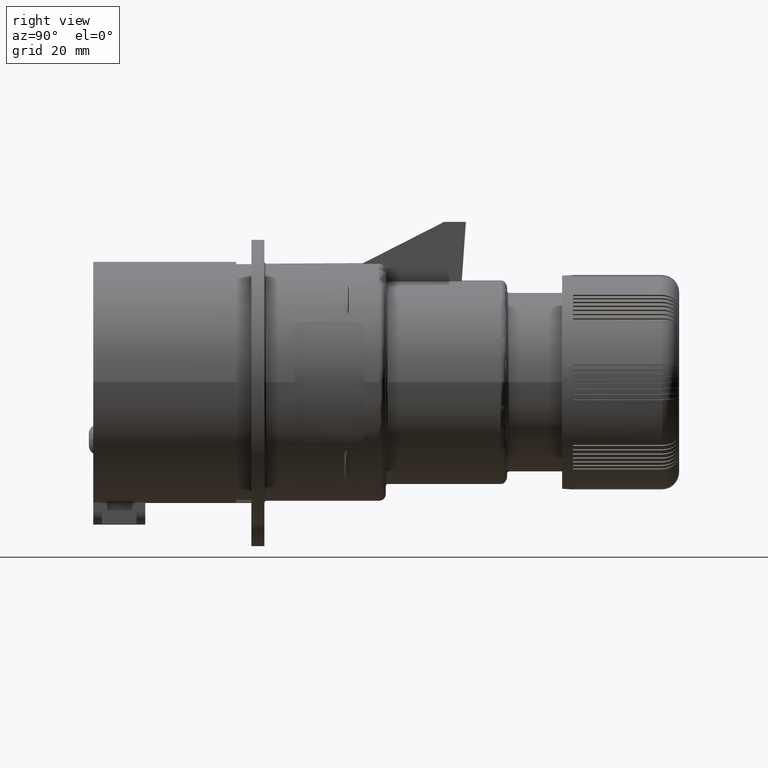
[diagram: clean part render]
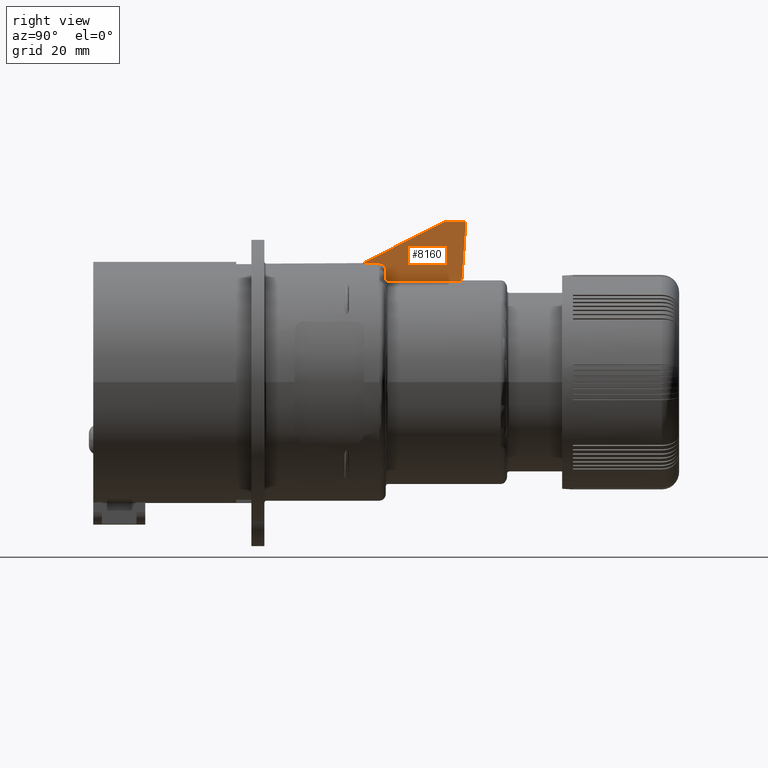
[diagram: same view with one face highlighted and labeled with its STEP entity id]
A machine part, right view. The second image highlights one B-rep face of the part: STEP entity #8160.
In plain terms, the highlighted planar face has unit normal (1, 0, 0).
Its self-contained STEP definition (entity closure, byte-faithful):
#6320=CARTESIAN_POINT('',(-196.745,-37.1967325401931,29.4190730230296));
#6330=DIRECTION('',(1.,0.,0.));
#6340=DIRECTION('',(0.,1.,0.));
#6350=AXIS2_PLACEMENT_3D('',#6320,#6330,#6340);
#6360=PLANE('',#6350);
#6370=CARTESIAN_POINT('',(-196.745,0.,37.0000000000001));
#6380=DIRECTION('',(0.,-1.,-1.4210854715202E-15));
#6390=VECTOR('',#6380,1.);
#6400=LINE('',#6370,#6390);
#6410=CARTESIAN_POINT('',(-196.745,-29.4277466954416,37.));
#6420=VERTEX_POINT('',#6410);
#6430=CARTESIAN_POINT('',(-196.745,-34.4277466954416,37.));
#6440=VERTEX_POINT('',#6430);
#6450=EDGE_CURVE('',#6420,#6440,#6400,.T.);
#6460=ORIENTED_EDGE('',*,*,#6450,.T.);
#6470=CARTESIAN_POINT('',(-196.745,-32.084965549295,-1.));
#6480=DIRECTION('',(0.,-0.0697564737441252,-0.997564050259824));
#6490=VECTOR('',#6480,1.);
#6500=LINE('',#6470,#6490);
#6510=CARTESIAN_POINT('',(-196.745,-30.3875983223491,23.2734822276341));
#6520=VERTEX_POINT('',#6510);
#6530=EDGE_CURVE('',#6420,#6520,#6500,.T.);
#6540=ORIENTED_EDGE('',*,*,#6530,.F.);
#6550=CARTESIAN_POINT('',(-196.745,-32.9277468477208,23.2734822276341));
#6560=DIRECTION('',(0.,-1.,0.));
#6570=VECTOR('',#6560,1.);
#6580=LINE('',#6550,#6570);
#6590=CARTESIAN_POINT('',(-196.745,-47.4277466954416,23.2734822276341));
#6600=VERTEX_POINT('',#6590);
#6610=EDGE_CURVE('',#6520,#6600,#6580,.T.);
#6620=ORIENTED_EDGE('',*,*,#6610,.F.);
#6630=CARTESIAN_POINT('',(-196.745,-47.4277466954416,23.2734822276341));
#6640=CARTESIAN_POINT('',(-196.745,-47.4440792417298,23.2734822276341));
#6650=CARTESIAN_POINT('',(-196.745,-47.4604887455675,23.2742920570256));
#6660=CARTESIAN_POINT('',(-196.745,-47.476861006203,23.2759238224133));
#6670=CARTESIAN_POINT('',(-196.745,-47.493232979284,23.2775555591414));
#6680=CARTESIAN_POINT('',(-196.745,-47.5095641865395,23.2800091192698));
#6690=CARTESIAN_POINT('',(-196.745,-47.5257336375375,23.2832719950522));
#6700=CARTESIAN_POINT('',(-196.745,-47.5419030911165,23.2865348713555));
#6710=CARTESIAN_POINT('',(-196.745,-47.5579072086867,23.2906063375851));
#6720=CARTESIAN_POINT('',(-196.745,-47.5736301185969,23.2954490347821));
#6730=CARTESIAN_POINT('',(-196.745,-47.5893533894889,23.3002918431625));
#6740=CARTESIAN_POINT('',(-196.744999999998,-47.6047918369164,
23.3059044874629));
#6750=CARTESIAN_POINT('',(-196.744999999998,-47.619846526837,
23.3122300932001));
#6760=CARTESIAN_POINT('',(-196.744999999998,-47.6349068644894,
23.3185580719735));
#6770=CARTESIAN_POINT('',(-196.745,-47.6497241766817,23.325658789243));
#6780=CARTESIAN_POINT('',(-196.745,-47.6641908350417,23.3334980592937));
#6790=CARTESIAN_POINT('',(-196.745,-47.6786572494896,23.3413371971721));
#6800=CARTESIAN_POINT('',(-196.745,-47.6927699282759,23.3499134723103));
#6810=CARTESIAN_POINT('',(-196.745,-47.7064245081612,23.359168236199));
#6820=CARTESIAN_POINT('',(-196.745,-47.7200790909998,23.3684230020894));
#6830=CARTESIAN_POINT('',(-196.745,-47.7332726794072,23.378354288137));
#6840=CARTESIAN_POINT('',(-196.745,-47.7459147862822,23.3888832424838));
#6850=CARTESIAN_POINT('',(-196.745,-47.7585571272253,23.3994123917737));
#6860=CARTESIAN_POINT('',(-196.745,-47.7706454942892,23.4105368266413));
#6870=CARTESIAN_POINT('',(-196.745,-47.7821112090811,23.4221660287194));
#6880=CARTESIAN_POINT('',(-196.745,-47.7935791345865,23.4337974730331));
#6890=CARTESIAN_POINT('',(-196.745,-47.8045313265026,23.4460424738584));
#6900=CARTESIAN_POINT('',(-196.745,-47.8148836153353,23.4588295310669));
#6910=CARTESIAN_POINT('',(-196.745,-47.8252357329909,23.4716163768388));
#6920=CARTESIAN_POINT('',(-196.745,-47.8349857736687,23.4849429352863));
#6930=CARTESIAN_POINT('',(-196.745,-47.8440612251605,23.49871723381));
#6940=CARTESIAN_POINT('',(-196.745,-47.8531366739668,23.5124915282578));
#6950=CARTESIAN_POINT('',(-196.745,-47.8615357129771,23.5267108041235));
#6960=CARTESIAN_POINT('',(-196.745,-47.8692052839675,23.5412701234132));
#6970=CARTESIAN_POINT('',(-196.745,-47.8768749763305,23.5558296731071));
#6980=CARTESIAN_POINT('',(-196.745,-47.8838139021848,23.5707263615912));
#6990=CARTESIAN_POINT('',(-196.745,-47.88999233702,23.5858522753527));
#7000=CARTESIAN_POINT('',(-196.745,-47.8961664450114,23.6009675962265));
#7010=CARTESIAN_POINT('',(-196.745,-47.9016375629908,23.6164494082685));
#7020=CARTESIAN_POINT('',(-196.745,-47.9063561446807,23.632205844754));
#7030=CARTESIAN_POINT('',(-196.745,-47.9110745479457,23.6479616854373));
#7040=CARTESIAN_POINT('',(-196.745,-47.9150387965027,23.6639878812646));
#7050=CARTESIAN_POINT('',(-196.745,-47.9182154042543,23.6801740188319));
#7060=CARTESIAN_POINT('',(-196.745,-47.9213920078862,23.6963601354069));
#7070=CARTESIAN_POINT('',(-196.745,-47.9237803415778,23.7127030737055));
#7080=CARTESIAN_POINT('',(-196.745,-47.9253690314144,23.7290874023994));
#7090=CARTESIAN_POINT('',(-196.745,-47.9269577438702,23.7454719643674));
#7100=CARTESIAN_POINT('',(-196.745,-47.9277466954416,23.7618948297872));
#7110=CARTESIAN_POINT('',(-196.745,-47.9277466954416,23.7782458352167));
#7120=B_SPLINE_CURVE_WITH_KNOTS('',3,(#6630,#6640,#6650,#6660,#6670,
#6680,#6690,#6700,#6710,#6720,#6730,#6740,#6750,#6760,#6770,#6780,#6790,
#6800,#6810,#6820,#6830,#6840,#6850,#6860,#6870,#6880,#6890,#6900,#6910,
#6920,#6930,#6940,#6950,#6960,#6970,#6980,#6990,#7000,#7010,#7020,#7030,
#7040,#7050,#7060,#7070,#7080,#7090,#7100,#7110),.UNSPECIFIED.,.F.,.F.,(
4,3,3,3,3,3,3,3,3,3,3,3,3,3,3,3,4),(0.,0.0491951873647806,
0.0986376513827296,0.148078280710043,0.197267055864156,0.246467799206315
,0.295911096930069,0.345352489813868,0.394544582195242,0.443739803180293
,0.493179832401138,0.542625944096809,0.591835396790661,0.641011772037107
,0.690443645752135,0.739896811282036,0.789131876782186),.UNSPECIFIED.);
#7130=CARTESIAN_POINT('',(-196.745,-47.9277466954416,23.7782458352167));
#7140=VERTEX_POINT('',#7130);
#7150=EDGE_CURVE('',#6600,#7140,#7120,.T.);
#7160=ORIENTED_EDGE('',*,*,#7150,.F.);
#7170=CARTESIAN_POINT('',(-196.745,-47.9277466954416,0.));
#7180=DIRECTION('',(0.,0.,1.));
#7190=VECTOR('',#7180,1.);
#7200=LINE('',#7170,#7190);
#7210=CARTESIAN_POINT('',(-196.745,-47.9277466954416,25.795444849818));
#7220=VERTEX_POINT('',#7210);
#7230=EDGE_CURVE('',#7140,#7220,#7200,.T.);
#7240=ORIENTED_EDGE('',*,*,#7230,.F.);
#7250=CARTESIAN_POINT('',(-196.745,-49.0743084907462,27.2641501522686));
#7260=CARTESIAN_POINT('',(-196.745,-49.0335332377085,27.2541939066544));
#7270=CARTESIAN_POINT('',(-196.745,-48.9931978978067,27.2425175590045));
#7280=CARTESIAN_POINT('',(-196.745,-48.9535115359172,27.2291979105007));
#7290=CARTESIAN_POINT('',(-196.745,-48.9138247142799,27.2158781076951));
#7300=CARTESIAN_POINT('',(-196.745,-48.8747911181383,27.2009167670872));
#7310=CARTESIAN_POINT('',(-196.745,-48.8365941351765,27.1844206609773));
#7320=CARTESIAN_POINT('',(-196.745,-48.7984461900131,27.1679457327894));
#7330=CARTESIAN_POINT('',(-196.745,-48.760884343993,27.1498357770383));
#7340=CARTESIAN_POINT('',(-196.745,-48.7240183864832,27.1301104443964));
#7350=CARTESIAN_POINT('',(-196.745,-48.6871595076929,27.1103888992621));
#7360=CARTESIAN_POINT('',(-196.745,-48.6510301793423,27.0890672940524));
#7370=CARTESIAN_POINT('',(-196.745,-48.6158256855732,27.066241586061));
#7380=CARTESIAN_POINT('',(-196.745,-48.5806213519776,27.0434159819221));
#7390=CARTESIAN_POINT('',(-196.745,-48.5463458037271,27.0190886883318));
#7400=CARTESIAN_POINT('',(-196.745,-48.5131786093633,26.9933905535004));
#7410=CARTESIAN_POINT('',(-196.745,-48.4800112647539,26.9676923022578));
#7420=CARTESIAN_POINT('',(-196.745,-48.4479558471887,26.940626135637));
#7430=CARTESIAN_POINT('',(-196.745,-48.41716416416,26.9123492385763));
#7440=CARTESIAN_POINT('',(-196.745,-48.3863665766437,26.8840669192531));
#7450=CARTESIAN_POINT('',(-196.745,-48.3568582650206,26.8546005180913));
#7460=CARTESIAN_POINT('',(-196.745,-48.32869088599,26.8240519692985));
#7470=CARTESIAN_POINT('',(-196.745,-48.3004874107723,26.7934642728756));
#7480=CARTESIAN_POINT('',(-196.745,-48.273447528409,26.7615917233238));
#7490=CARTESIAN_POINT('',(-196.745,-48.2477241086198,26.7285709793655));
#7500=CARTESIAN_POINT('',(-196.745,-48.2220009764836,26.6955506046629));
#7510=CARTESIAN_POINT('',(-196.745,-48.1975971775395,26.6613852283195));
#7520=CARTESIAN_POINT('',(-196.745,-48.1746471400078,26.626243895032));
#7530=CARTESIAN_POINT('',(-196.745,-48.1516971522809,26.5911026380063));
#7540=CARTESIAN_POINT('',(-196.745,-48.1302034091908,26.5549891211147));
#7550=CARTESIAN_POINT('',(-196.745,-48.110271000763,26.5180948246944));
#7560=CARTESIAN_POINT('',(-196.745,-48.090338461369,26.4812002858598));
#7570=CARTESIAN_POINT('',(-196.745,-48.0719691832195,26.4435289070311));
#7580=CARTESIAN_POINT('',(-196.745,-48.0552325627876,26.4052819079295));
#7590=CARTESIAN_POINT('',(-196.745,-48.046864285992,26.3861584847518));
#7600=CARTESIAN_POINT('',(-196.745,-48.0389037522094,26.3668915681622));
#7610=CARTESIAN_POINT('',(-196.745,-48.0313562120961,26.347506243334));
#7620=CARTESIAN_POINT('',(-196.745,-48.0238118973834,26.32812920272));
#7630=CARTESIAN_POINT('',(-196.745,-48.0166708616962,26.3086132834037));
#7640=CARTESIAN_POINT('',(-196.745,-48.0099127600534,26.2888946287406));
#7650=CARTESIAN_POINT('',(-196.745,-47.9964013223982,26.2494712244758));
#7660=CARTESIAN_POINT('',(-196.745,-47.9844687309892,26.2093562738494));
#7670=CARTESIAN_POINT('',(-196.745,-47.9741975599601,26.1687386440303));
#7680=CARTESIAN_POINT('',(-196.745,-47.9639264799317,26.1281213740761));
#7690=CARTESIAN_POINT('',(-196.745,-47.9553180763268,26.0870054330039));
#7700=CARTESIAN_POINT('',(-196.745,-47.9484244173329,26.0455990054426));
#7710=CARTESIAN_POINT('',(-196.745,-47.9415307602369,26.0041925892807));
#7720=CARTESIAN_POINT('',(-196.745,-47.9363525610696,25.9624999343885));
#7730=CARTESIAN_POINT('',(-196.745,-47.9329065277844,25.9207354514192));
#7740=CARTESIAN_POINT('',(-196.745,-47.9294604660331,25.8789706234527));
#7750=CARTESIAN_POINT('',(-196.745,-47.9277466954416,25.8371381669625));
#7760=CARTESIAN_POINT('',(-196.745,-47.9277466954416,25.795444849818));
#7770=B_SPLINE_CURVE_WITH_KNOTS('',3,(#7250,#7260,#7270,#7280,#7290,
#7300,#7310,#7320,#7330,#7340,#7350,#7360,#7370,#7380,#7390,#7400,#7410,
#7420,#7430,#7440,#7450,#7460,#7470,#7480,#7490,#7500,#7510,#7520,#7530,
#7540,#7550,#7560,#7570,#7580,#7590,#7600,#7610,#7620,#7630,#7640,#7650,
#7660,#7670,#7680,#7690,#7700,#7710,#7720,#7730,#7740,#7750,#7760),
.UNSPECIFIED.,.F.,.F.,(4,3,3,3,3,3,3,3,3,3,3,3,3,3,3,3,3,4),(0.,
0.125789254860918,0.251024517483966,0.376052537896461,0.501727364198305,
0.62763608113309,0.753316944170629,0.878348614504932,1.00357341695516,
1.12935185468374,1.25524724917298,1.38080599310593,1.44332527397495,
1.50574074882289,1.63112795305402,1.75697170975115,1.88283166090963,
2.00826388367813),.UNSPECIFIED.);
#7780=CARTESIAN_POINT('',(-196.745,-49.0743084907462,27.2641501522686));
#7790=VERTEX_POINT('',#7780);
#7800=EDGE_CURVE('',#7790,#7220,#7770,.T.);
#7810=ORIENTED_EDGE('',*,*,#7800,.T.);
#7820=CARTESIAN_POINT('',(-196.745,-49.4277466954416,27.3066837056425));
#7830=CARTESIAN_POINT('',(-196.745,-49.3982165242674,27.3066837056425));
#7840=CARTESIAN_POINT('',(-196.745,-49.3686032241563,27.3058048135729));
#7850=CARTESIAN_POINT('',(-196.745,-49.3389808489502,27.304036331692));
#7860=CARTESIAN_POINT('',(-196.745,-49.3093586519647,27.302267860451));
#7870=CARTESIAN_POINT('',(-196.745,-49.2797281985494,27.2996097685456));
#7880=CARTESIAN_POINT('',(-196.745,-49.250168186739,27.2960605337228));
#7890=CARTESIAN_POINT('',(-196.745,-49.2206082713676,27.2925113104793));
#7900=CARTESIAN_POINT('',(-196.745000000002,-49.1911196570656,
27.2880710040653));
#7910=CARTESIAN_POINT('',(-196.745000000002,-49.1617826849991,
27.2827480539349));
#7920=CARTESIAN_POINT('',(-196.745000000002,-49.132445733167,
27.2774251074758));
#7930=CARTESIAN_POINT('',(-196.745,-49.10326129008,27.2712196652675));
#7940=CARTESIAN_POINT('',(-196.745,-49.0743084907462,27.2641501522686));
#7950=B_SPLINE_CURVE_WITH_KNOTS('',3,(#7820,#7830,#7840,#7850,#7860,
#7870,#7880,#7890,#7900,#7910,#7920,#7930,#7940),.UNSPECIFIED.,.F.,.F.,(
4,3,3,3,4),(0.,0.088818474099463,0.178001866870323,0.267397703563876,
0.356840513288556),.UNSPECIFIED.);
#7960=CARTESIAN_POINT('',(-196.745,-49.4277466954416,27.3066837056425));
#7970=VERTEX_POINT('',#7960);
#7980=EDGE_CURVE('',#7970,#7790,#7950,.T.);
#7990=ORIENTED_EDGE('',*,*,#7980,.T.);
#8000=CARTESIAN_POINT('',(-196.745,-61.9277466954416,27.3066837056425));
#8010=DIRECTION('',(0.,-1.,0.));
#8020=VECTOR('',#8010,1.);
#8030=LINE('',#8000,#8020);
#8040=CARTESIAN_POINT('',(-196.745,-53.451951087932,27.3066837056425));
#8050=VERTEX_POINT('',#8040);
#8060=EDGE_CURVE('',#7970,#8050,#8030,.T.);
#8070=ORIENTED_EDGE('',*,*,#8060,.F.);
#8080=CARTESIAN_POINT('',(-196.745,0.,54.5418131100752));
#8090=DIRECTION('',(0.,0.891006524188368,0.453990499739547));
#8100=VECTOR('',#8090,1.);
#8110=LINE('',#8080,#8100);
#8120=EDGE_CURVE('',#8050,#6440,#8110,.T.);
#8130=ORIENTED_EDGE('',*,*,#8120,.F.);
#8140=EDGE_LOOP('',(#8130,#8070,#7990,#7810,#7240,#7160,#6620,#6540,
#6460));
#8150=FACE_OUTER_BOUND('',#8140,.T.);
#8160=ADVANCED_FACE('',(#8150),#6360,.T.);